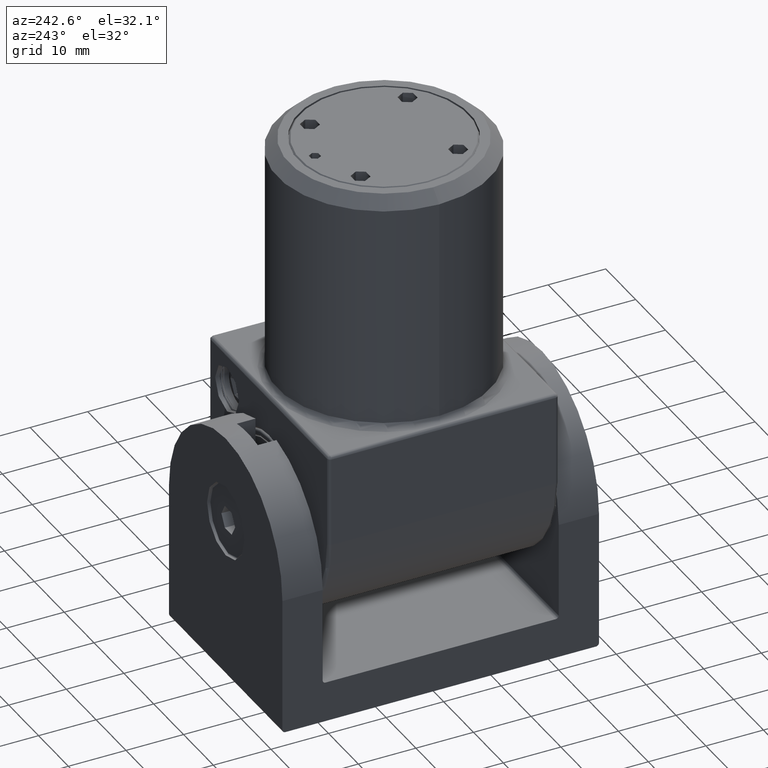
[diagram: clean part render]
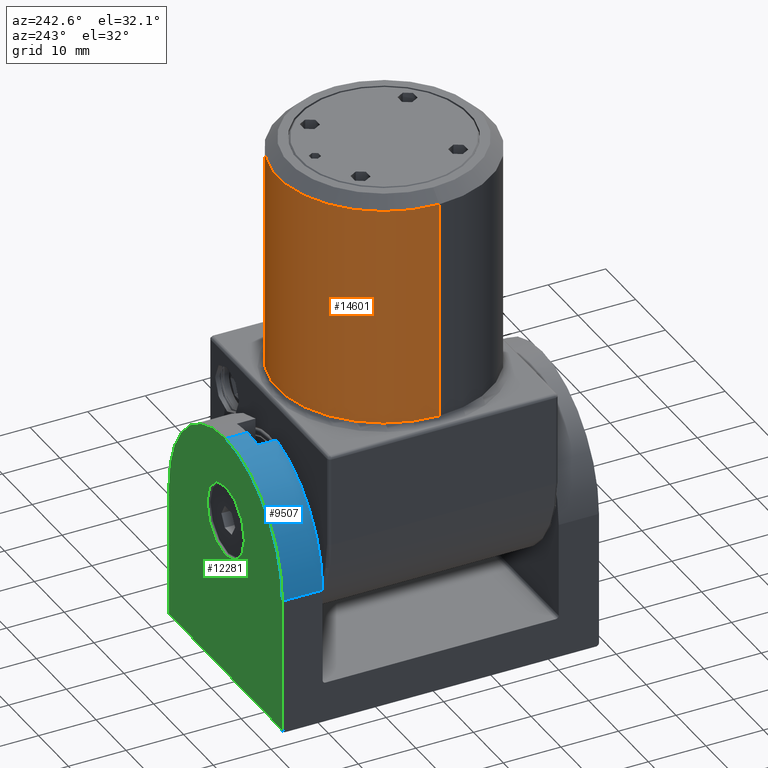
[diagram: same view with three faces highlighted in distinct colors, each labeled with its STEP entity id]
A machine part, auxiliary view with three faces highlighted in distinct colors.
Their STEP definitions:

[orange] entity #14601 — the highlighted cylindrical surface (partial cylindrical patch) has radius 18.5 mm, axis along (-0, -0, -1).
#190 = EDGE_CURVE ( 'NONE', #6568, #2798, #2202, .T. ) ;
#1975 = CARTESIAN_POINT ( 'NONE',  ( 0.000000000000000000, 0.000000000000000000, 39.49999999999995026 ) ) ;
#2202 = CIRCLE ( 'NONE', #7857, 18.50000000000000000 ) ;
#2280 = EDGE_CURVE ( 'NONE', #16122, #5276, #7785, .T. ) ;
#2502 = EDGE_LOOP ( 'NONE', ( #20276, #4841, #12900, #2703 ) ) ;
#2703 = ORIENTED_EDGE ( 'NONE', *, *, #15517, .F. ) ;
#2798 = VERTEX_POINT ( 'NONE', #11603 ) ;
#3839 = CARTESIAN_POINT ( 'NONE',  ( 0.000000000000000000, 0.000000000000000000, 1.000000000000000888 ) ) ;
#4312 = CARTESIAN_POINT ( 'NONE',  ( 18.50000000000000000, 2.265596578422603396E-15, 1.000000000000000888 ) ) ;
#4841 = ORIENTED_EDGE ( 'NONE', *, *, #19999, .T. ) ;
#5276 = VERTEX_POINT ( 'NONE', #12558 ) ;
#5337 = DIRECTION ( 'NONE',  ( 1.000000000000000000, 0.000000000000000000, 0.000000000000000000 ) ) ;
#5353 = DIRECTION ( 'NONE',  ( -0.000000000000000000, -0.000000000000000000, -1.000000000000000000 ) ) ;
#6568 = VERTEX_POINT ( 'NONE', #7336 ) ;
#7125 = DIRECTION ( 'NONE',  ( -1.000000000000000000, 0.000000000000000000, 0.000000000000000000 ) ) ;
#7336 = CARTESIAN_POINT ( 'NONE',  ( -18.50000000000000000, 0.000000000000000000, 39.49999999999995026 ) ) ;
#7785 = CIRCLE ( 'NONE', #20253, 18.50000000000000000 ) ;
#7857 = AXIS2_PLACEMENT_3D ( 'NONE', #1975, #17987, #5337 ) ;
#8602 = DIRECTION ( 'NONE',  ( -0.000000000000000000, -0.000000000000000000, -1.000000000000000000 ) ) ;
#9145 = LINE ( 'NONE', #14812, #12360 ) ;
#11603 = CARTESIAN_POINT ( 'NONE',  ( 18.50000000000000000, 2.265596578422603396E-15, 39.49999999999995026 ) ) ;
#11834 = DIRECTION ( 'NONE',  ( -0.000000000000000000, -0.000000000000000000, 1.000000000000000000 ) ) ;
#12360 = VECTOR ( 'NONE', #5353, 1000.000000000000000 ) ;
#12558 = CARTESIAN_POINT ( 'NONE',  ( -18.50000000000000000, 0.000000000000000000, 1.000000000000000888 ) ) ;
#12841 = DIRECTION ( 'NONE',  ( -1.000000000000000000, 0.000000000000000000, 0.000000000000000000 ) ) ;
#12900 = ORIENTED_EDGE ( 'NONE', *, *, #2280, .T. ) ;
#13206 = FACE_OUTER_BOUND ( 'NONE', #2502, .T. ) ;
#13430 = VECTOR ( 'NONE', #8602, 1000.000000000000000 ) ;
#13438 = AXIS2_PLACEMENT_3D ( 'NONE', #16316, #19212, #12841 ) ;
#13468 = CYLINDRICAL_SURFACE ( 'NONE', #13438, 18.50000000000000000 ) ;
#14601 = ADVANCED_FACE ( 'NONE', ( #13206 ), #13468, .T. ) ;
#14812 = CARTESIAN_POINT ( 'NONE',  ( 18.50000000000000000, 2.265596578422603396E-15, 41.50000000000000711 ) ) ;
#14898 = CARTESIAN_POINT ( 'NONE',  ( -18.50000000000000000, 0.000000000000000000, 41.50000000000000711 ) ) ;
#15517 = EDGE_CURVE ( 'NONE', #6568, #5276, #18646, .T. ) ;
#16122 = VERTEX_POINT ( 'NONE', #4312 ) ;
#16316 = CARTESIAN_POINT ( 'NONE',  ( 0.000000000000000000, 0.000000000000000000, 41.50000000000000711 ) ) ;
#17987 = DIRECTION ( 'NONE',  ( 0.000000000000000000, 0.000000000000000000, -1.000000000000000000 ) ) ;
#18646 = LINE ( 'NONE', #14898, #13430 ) ;
#19212 = DIRECTION ( 'NONE',  ( -0.000000000000000000, -0.000000000000000000, -1.000000000000000000 ) ) ;
#19999 = EDGE_CURVE ( 'NONE', #2798, #16122, #9145, .T. ) ;
#20253 = AXIS2_PLACEMENT_3D ( 'NONE', #3839, #11834, #7125 ) ;
#20276 = ORIENTED_EDGE ( 'NONE', *, *, #190, .T. ) ;

[blue] entity #9507 — the highlighted cylindrical surface (partial cylindrical patch) has radius 19 mm, axis along (0, -1, 0).
#72 = VERTEX_POINT ( 'NONE', #20267 ) ;
#122 = LINE ( 'NONE', #6729, #2339 ) ;
#1091 = ORIENTED_EDGE ( 'NONE', *, *, #11599, .F. ) ;
#2339 = VECTOR ( 'NONE', #6664, 1000.000000000000000 ) ;
#2948 = CYLINDRICAL_SURFACE ( 'NONE', #15958, 19.00000000000000000 ) ;
#2969 = AXIS2_PLACEMENT_3D ( 'NONE', #14441, #14296, #8119 ) ;
#4062 = VERTEX_POINT ( 'NONE', #18767 ) ;
#4329 = VECTOR ( 'NONE', #9665, 1000.000000000000000 ) ;
#4668 = DIRECTION ( 'NONE',  ( 0.000000000000000000, -1.000000000000000000, 0.000000000000000000 ) ) ;
#4787 = VECTOR ( 'NONE', #19778, 1000.000000000000000 ) ;
#4976 = ORIENTED_EDGE ( 'NONE', *, *, #5322, .T. ) ;
#5142 = EDGE_LOOP ( 'NONE', ( #20084, #4976, #13146, #1091, #18553, #18056 ) ) ;
#5322 = EDGE_CURVE ( 'NONE', #12161, #13679, #20406, .T. ) ;
#5538 = CARTESIAN_POINT ( 'NONE',  ( 0.000000000000000000, 27.50000000000000000, 43.00000000000000000 ) ) ;
#6031 = VERTEX_POINT ( 'NONE', #13573 ) ;
#6664 = DIRECTION ( 'NONE',  ( -0.000000000000000000, 1.000000000000000000, -0.000000000000000000 ) ) ;
#6729 = CARTESIAN_POINT ( 'NONE',  ( -19.00000000000000000, 0.000000000000000000, 23.99999999999999645 ) ) ;
#6765 = LINE ( 'NONE', #8341, #4329 ) ;
#7203 = EDGE_CURVE ( 'NONE', #13679, #6031, #20371, .T. ) ;
#7374 = FACE_OUTER_BOUND ( 'NONE', #5142, .T. ) ;
#8119 = DIRECTION ( 'NONE',  ( 0.000000000000000000, 0.000000000000000000, 1.000000000000000000 ) ) ;
#8341 = CARTESIAN_POINT ( 'NONE',  ( -3.500000000000000000, 27.50000000000000000, 42.67484939698309887 ) ) ;
#9351 = VERTEX_POINT ( 'NONE', #19676 ) ;
#9507 = ADVANCED_FACE ( 'NONE', ( #7374 ), #2948, .T. ) ;
#9665 = DIRECTION ( 'NONE',  ( 0.000000000000000000, -1.000000000000000000, 0.000000000000000000 ) ) ;
#9945 = EDGE_CURVE ( 'NONE', #9351, #72, #11069, .T. ) ;
#11069 = CIRCLE ( 'NONE', #14124, 19.00000000000000000 ) ;
#11599 = EDGE_CURVE ( 'NONE', #4062, #6031, #14491, .T. ) ;
#11703 = DIRECTION ( 'NONE',  ( 0.000000000000000000, 0.000000000000000000, -1.000000000000000000 ) ) ;
#11888 = CARTESIAN_POINT ( 'NONE',  ( -3.500000000000000000, 23.75000000000000000, 42.67484939698309887 ) ) ;
#11947 = AXIS2_PLACEMENT_3D ( 'NONE', #13490, #19581, #11703 ) ;
#12161 = VERTEX_POINT ( 'NONE', #11888 ) ;
#12269 = CARTESIAN_POINT ( 'NONE',  ( 0.000000000000000000, 23.75000000000000000, 43.00000000000000000 ) ) ;
#13146 = ORIENTED_EDGE ( 'NONE', *, *, #7203, .T. ) ;
#13490 = CARTESIAN_POINT ( 'NONE',  ( 0.000000000000000000, 27.50000000000000000, 23.99999999999999645 ) ) ;
#13573 = CARTESIAN_POINT ( 'NONE',  ( 0.000000000000000000, 27.50000000000000000, 43.00000000000000000 ) ) ;
#13679 = VERTEX_POINT ( 'NONE', #12269 ) ;
#13991 = DIRECTION ( 'NONE',  ( 0.000000000000000000, 0.000000000000000000, -1.000000000000000000 ) ) ;
#14124 = AXIS2_PLACEMENT_3D ( 'NONE', #17288, #19006, #14305 ) ;
#14296 = DIRECTION ( 'NONE',  ( 0.000000000000000000, 1.000000000000000000, 0.000000000000000000 ) ) ;
#14305 = DIRECTION ( 'NONE',  ( 0.000000000000000000, 0.000000000000000000, 1.000000000000000000 ) ) ;
#14441 = CARTESIAN_POINT ( 'NONE',  ( 0.000000000000000000, 23.75000000000000000, 23.99999999999999645 ) ) ;
#14491 = CIRCLE ( 'NONE', #11947, 19.00000000000000000 ) ;
#15958 = AXIS2_PLACEMENT_3D ( 'NONE', #17246, #4668, #13991 ) ;
#16282 = EDGE_CURVE ( 'NONE', #12161, #9351, #6765, .T. ) ;
#16986 = EDGE_CURVE ( 'NONE', #72, #4062, #122, .T. ) ;
#17246 = CARTESIAN_POINT ( 'NONE',  ( 0.000000000000000000, 27.50000000000000000, 23.99999999999999645 ) ) ;
#17288 = CARTESIAN_POINT ( 'NONE',  ( 0.000000000000000000, 20.50000000000000000, 23.99999999999999645 ) ) ;
#18056 = ORIENTED_EDGE ( 'NONE', *, *, #9945, .F. ) ;
#18553 = ORIENTED_EDGE ( 'NONE', *, *, #16986, .F. ) ;
#18767 = CARTESIAN_POINT ( 'NONE',  ( -19.00000000000000000, 27.50000000000000000, 23.99999999999999645 ) ) ;
#19006 = DIRECTION ( 'NONE',  ( 0.000000000000000000, -1.000000000000000000, -0.000000000000000000 ) ) ;
#19581 = DIRECTION ( 'NONE',  ( -0.000000000000000000, 1.000000000000000000, -0.000000000000000000 ) ) ;
#19676 = CARTESIAN_POINT ( 'NONE',  ( -3.500000000000000000, 20.49999999999999645, 42.67484939698309887 ) ) ;
#19778 = DIRECTION ( 'NONE',  ( -0.000000000000000000, 1.000000000000000000, -0.000000000000000000 ) ) ;
#20084 = ORIENTED_EDGE ( 'NONE', *, *, #16282, .F. ) ;
#20267 = CARTESIAN_POINT ( 'NONE',  ( -19.00000000000000000, 20.50000000000000000, 23.99999999999999645 ) ) ;
#20371 = LINE ( 'NONE', #5538, #4787 ) ;
#20406 = CIRCLE ( 'NONE', #2969, 19.00000000000000000 ) ;

[green] entity #12281 — the highlighted planar face has unit normal (0, -1, 0).
#77 = DIRECTION ( 'NONE',  ( 0.000000000000000000, 0.000000000000000000, -1.000000000000000000 ) ) ;
#179 = CIRCLE ( 'NONE', #4023, 6.250000000000001776 ) ;
#744 = CARTESIAN_POINT ( 'NONE',  ( 19.00000000000000000, 27.50000000000000000, 0.4999999999999935052 ) ) ;
#1661 = LINE ( 'NONE', #10287, #5835 ) ;
#1730 = VERTEX_POINT ( 'NONE', #10798 ) ;
#1990 = EDGE_LOOP ( 'NONE', ( #14050, #2309, #7620, #12932, #6156 ) ) ;
#2291 = CARTESIAN_POINT ( 'NONE',  ( 0.000000000000000000, 27.50000000000000000, 28.00000000000000000 ) ) ;
#2309 = ORIENTED_EDGE ( 'NONE', *, *, #4679, .T. ) ;
#2398 = DIRECTION ( 'NONE',  ( -0.000000000000000000, -0.000000000000000000, 1.000000000000000000 ) ) ;
#2983 = EDGE_CURVE ( 'NONE', #6227, #15637, #17435, .T. ) ;
#3616 = FACE_BOUND ( 'NONE', #9378, .T. ) ;
#3885 = DIRECTION ( 'NONE',  ( 0.000000000000000000, 0.000000000000000000, 1.000000000000000000 ) ) ;
#4023 = AXIS2_PLACEMENT_3D ( 'NONE', #12791, #14729, #14871 ) ;
#4062 = VERTEX_POINT ( 'NONE', #18767 ) ;
#4165 = DIRECTION ( 'NONE',  ( 0.000000000000000000, -0.000000000000000000, -1.000000000000000000 ) ) ;
#4626 = CARTESIAN_POINT ( 'NONE',  ( 0.000000000000000000, 27.50000000000000000, 23.99999999999999645 ) ) ;
#4679 = EDGE_CURVE ( 'NONE', #5643, #11590, #1661, .T. ) ;
#4914 = EDGE_CURVE ( 'NONE', #15637, #6227, #179, .T. ) ;
#5643 = VERTEX_POINT ( 'NONE', #744 ) ;
#5835 = VECTOR ( 'NONE', #11739, 1000.000000000000000 ) ;
#5937 = PLANE ( 'NONE',  #19358 ) ;
#6031 = VERTEX_POINT ( 'NONE', #13573 ) ;
#6156 = ORIENTED_EDGE ( 'NONE', *, *, #17772, .T. ) ;
#6227 = VERTEX_POINT ( 'NONE', #6641 ) ;
#6641 = CARTESIAN_POINT ( 'NONE',  ( 7.654042494670955634E-16, 27.50000000000000000, 21.75000000000000000 ) ) ;
#6893 = ORIENTED_EDGE ( 'NONE', *, *, #4914, .F. ) ;
#7124 = DIRECTION ( 'NONE',  ( -0.000000000000000000, -0.000000000000000000, 1.000000000000000000 ) ) ;
#7314 = CARTESIAN_POINT ( 'NONE',  ( 19.00000000000000000, 27.50000000000000000, 43.00000000000000000 ) ) ;
#7620 = ORIENTED_EDGE ( 'NONE', *, *, #12893, .T. ) ;
#7789 = VECTOR ( 'NONE', #7124, 1000.000000000000000 ) ;
#8440 = CIRCLE ( 'NONE', #13464, 19.00000000000000000 ) ;
#8524 = FACE_OUTER_BOUND ( 'NONE', #1990, .T. ) ;
#8764 = DIRECTION ( 'NONE',  ( -0.000000000000000000, 1.000000000000000000, -0.000000000000000000 ) ) ;
#9378 = EDGE_LOOP ( 'NONE', ( #6893, #19699 ) ) ;
#10116 = CARTESIAN_POINT ( 'NONE',  ( -19.00000000000000000, 27.50000000000000000, 0.4999999999999935052 ) ) ;
#10287 = CARTESIAN_POINT ( 'NONE',  ( 19.00000000000000000, 27.50000000000000000, 0.4999999999999935052 ) ) ;
#10759 = LINE ( 'NONE', #14945, #7789 ) ;
#10798 = CARTESIAN_POINT ( 'NONE',  ( 19.00000000000000000, 27.50000000000000000, 23.99999999999999645 ) ) ;
#10873 = VECTOR ( 'NONE', #2398, 1000.000000000000000 ) ;
#11384 = AXIS2_PLACEMENT_3D ( 'NONE', #2291, #8764, #3885 ) ;
#11590 = VERTEX_POINT ( 'NONE', #10116 ) ;
#11599 = EDGE_CURVE ( 'NONE', #4062, #6031, #14491, .T. ) ;
#11703 = DIRECTION ( 'NONE',  ( 0.000000000000000000, 0.000000000000000000, -1.000000000000000000 ) ) ;
#11739 = DIRECTION ( 'NONE',  ( -1.000000000000000000, 0.000000000000000000, 0.000000000000000000 ) ) ;
#11794 = CARTESIAN_POINT ( 'NONE',  ( 0.000000000000000000, 27.50000000000000000, 34.25000000000000000 ) ) ;
#11947 = AXIS2_PLACEMENT_3D ( 'NONE', #13490, #19581, #11703 ) ;
#12281 = ADVANCED_FACE ( 'NONE', ( #3616, #8524 ), #5937, .F. ) ;
#12791 = CARTESIAN_POINT ( 'NONE',  ( 0.000000000000000000, 27.50000000000000000, 28.00000000000000000 ) ) ;
#12893 = EDGE_CURVE ( 'NONE', #11590, #4062, #10759, .T. ) ;
#12932 = ORIENTED_EDGE ( 'NONE', *, *, #11599, .T. ) ;
#13464 = AXIS2_PLACEMENT_3D ( 'NONE', #4626, #15675, #77 ) ;
#13490 = CARTESIAN_POINT ( 'NONE',  ( 0.000000000000000000, 27.50000000000000000, 23.99999999999999645 ) ) ;
#13573 = CARTESIAN_POINT ( 'NONE',  ( 0.000000000000000000, 27.50000000000000000, 43.00000000000000000 ) ) ;
#13606 = DIRECTION ( 'NONE',  ( 0.000000000000000000, -1.000000000000000000, 0.000000000000000000 ) ) ;
#14050 = ORIENTED_EDGE ( 'NONE', *, *, #20019, .F. ) ;
#14491 = CIRCLE ( 'NONE', #11947, 19.00000000000000000 ) ;
#14729 = DIRECTION ( 'NONE',  ( -0.000000000000000000, 1.000000000000000000, -0.000000000000000000 ) ) ;
#14871 = DIRECTION ( 'NONE',  ( 0.000000000000000000, 0.000000000000000000, 1.000000000000000000 ) ) ;
#14945 = CARTESIAN_POINT ( 'NONE',  ( -19.00000000000000000, 27.50000000000000000, 43.00000000000000000 ) ) ;
#15637 = VERTEX_POINT ( 'NONE', #11794 ) ;
#15675 = DIRECTION ( 'NONE',  ( -0.000000000000000000, 1.000000000000000000, -0.000000000000000000 ) ) ;
#16484 = CARTESIAN_POINT ( 'NONE',  ( 19.00000000000000000, 27.50000000000000000, 43.00000000000000000 ) ) ;
#17309 = LINE ( 'NONE', #16484, #10873 ) ;
#17435 = CIRCLE ( 'NONE', #11384, 6.250000000000001776 ) ;
#17772 = EDGE_CURVE ( 'NONE', #6031, #1730, #8440, .T. ) ;
#18767 = CARTESIAN_POINT ( 'NONE',  ( -19.00000000000000000, 27.50000000000000000, 23.99999999999999645 ) ) ;
#19358 = AXIS2_PLACEMENT_3D ( 'NONE', #7314, #13606, #4165 ) ;
#19581 = DIRECTION ( 'NONE',  ( -0.000000000000000000, 1.000000000000000000, -0.000000000000000000 ) ) ;
#19699 = ORIENTED_EDGE ( 'NONE', *, *, #2983, .F. ) ;
#20019 = EDGE_CURVE ( 'NONE', #5643, #1730, #17309, .T. ) ;